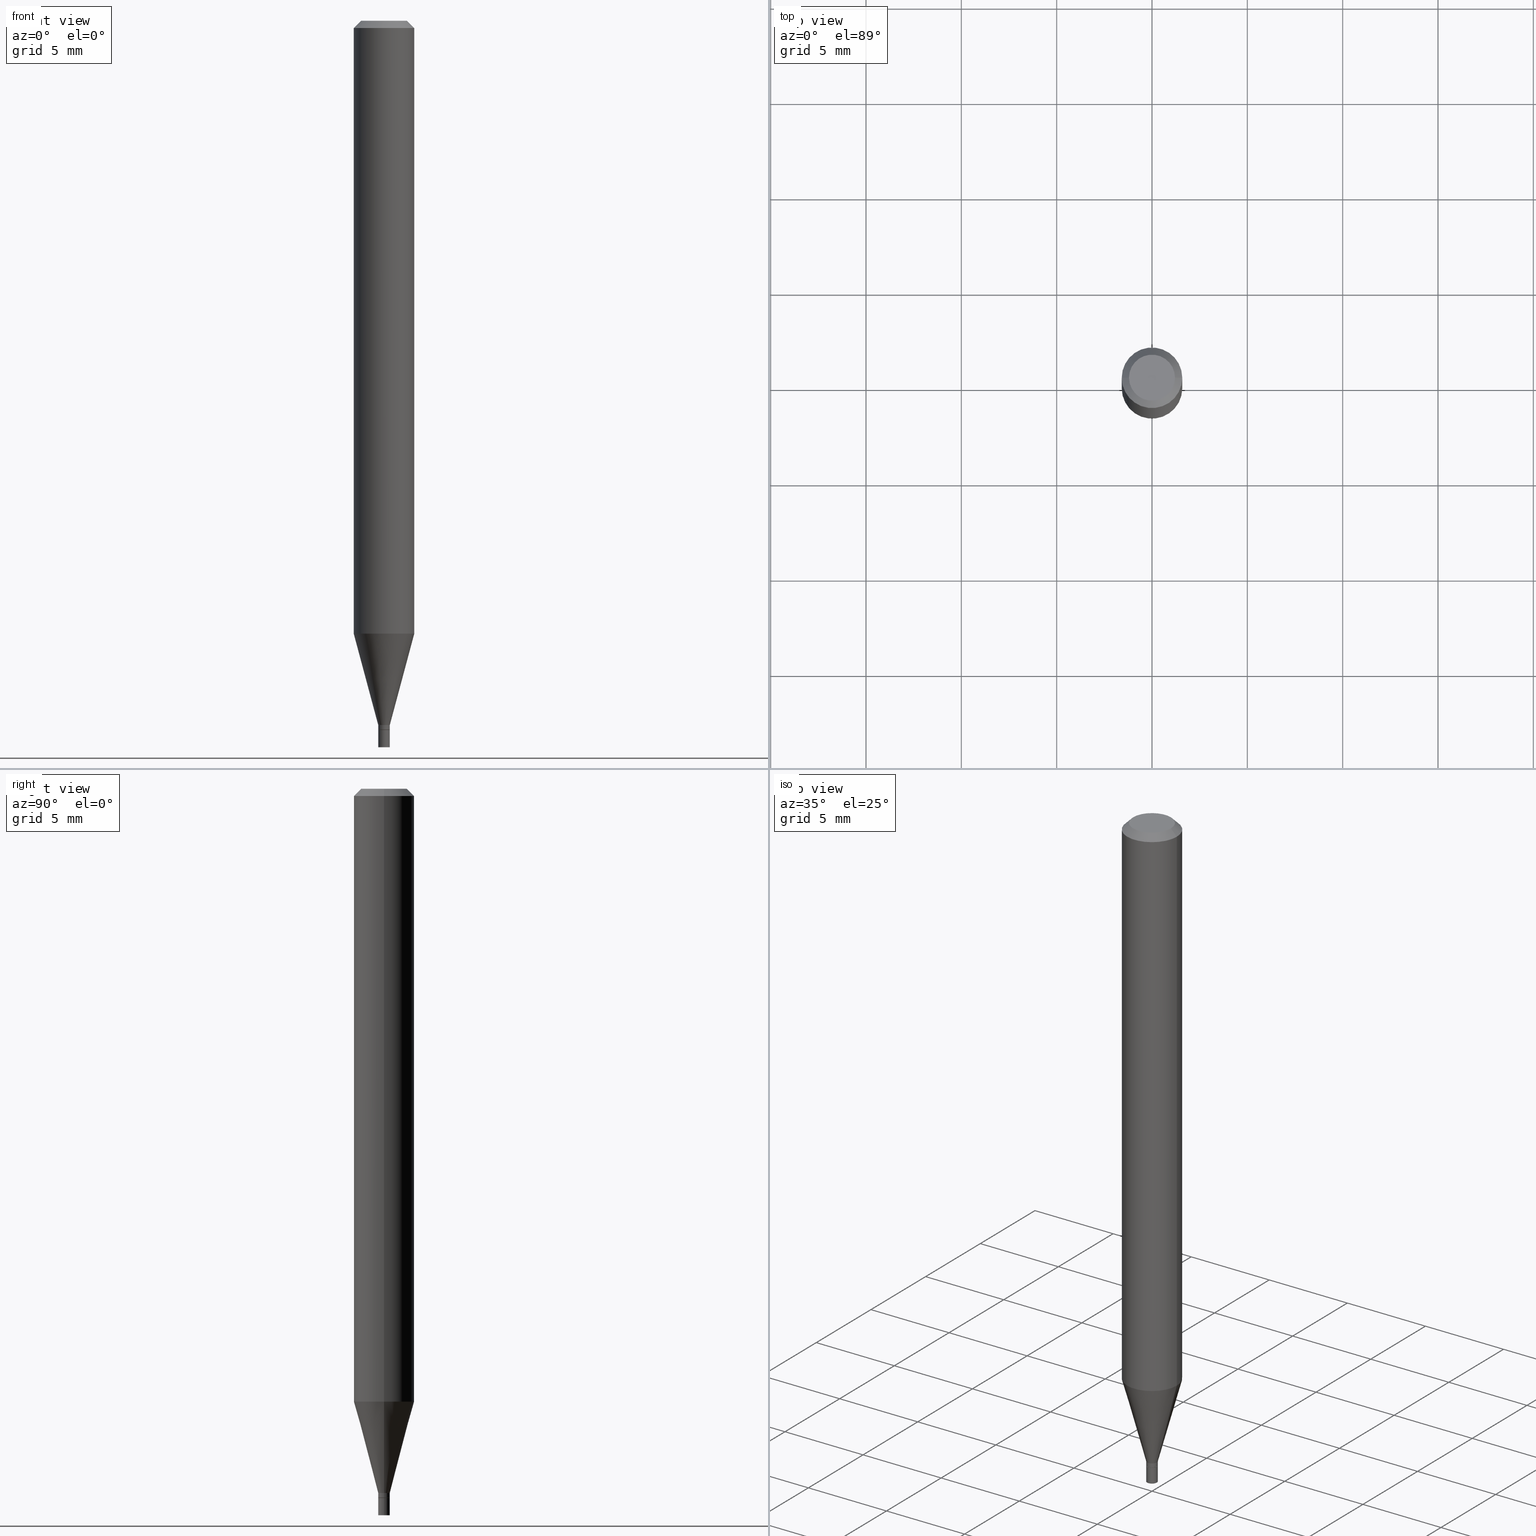
[diagram: canonical four-view strip — front | top / right | iso, engineering-drawing reading convention]
A machine part, canonical four-view strip (front | top / right | iso — engineering-drawing reading convention). The complete STEP part file that produces these views, byte-faithful:
ISO-10303-21;
HEADER;
FILE_DESCRIPTION (( 'STEP AP203' ),
    '1' );
FILE_NAME ('00320.STEP',
    '2024-03-19T20:58:21',
    ( '' ),
    ( '' ),
    'SwSTEP 2.0',
    'SolidWorks 2023',
    '' );
FILE_SCHEMA (( 'CONFIG_CONTROL_DESIGN' ));
ENDSEC;

DATA;
#1 = SHAPE_DEFINITION_REPRESENTATION ( #229, #456 ) ;
#2 = CARTESIAN_POINT ( 'NONE',  ( 3.668203209277705088E-31, -5.237222008264718399E-17, -0.01499999999999999944 ) ) ;
#3 = AXIS2_PLACEMENT_3D ( 'NONE', #223, #375, #192 ) ;
#4 = APPROVAL_ROLE ( '' ) ;
#5 = ORIENTED_EDGE ( 'NONE', *, *, #265, .T. ) ;
#6 = VECTOR ( 'NONE', #18, 39.37007874015748143 ) ;
#7 = ADVANCED_FACE ( 'NONE', ( #45 ), #277, .T. ) ;
#8 = CYLINDRICAL_SURFACE ( 'NONE', #241, 0.01200000000000000025 ) ;
#9 = EDGE_LOOP ( 'NONE', ( #41, #37 ) ) ;
#10 = AXIS2_PLACEMENT_3D ( 'NONE', #406, #196, #121 ) ;
#11 = ORIENTED_EDGE ( 'NONE', *, *, #338, .F. ) ;
#12 = CC_DESIGN_APPROVAL ( #368, ( #359 ) ) ;
#13 = CONICAL_SURFACE ( 'NONE', #74, 0.01149999999999999981, 0.7853981633974718157 ) ;
#14 = DIRECTION ( 'NONE',  ( -2.445468806185136597E-29, 3.491481338843145583E-15, 1.000000000000000000 ) ) ;
#15 = DIRECTION ( 'NONE',  ( 1.000000000000000000, -6.982962677686251722E-15, 0.000000000000000000 ) ) ;
#16 = DIRECTION ( 'NONE',  ( 1.000000000000000000, -6.982962677686251722E-15, 0.000000000000000000 ) ) ;
#17 = CARTESIAN_POINT ( 'NONE',  ( 0.04749999999999999362, -4.035134999187593414E-16, -8.506713692488677736E-16 ) ) ;
#18 = DIRECTION ( 'NONE',  ( -2.445468806185136877E-29, 3.491481338843145188E-15, 1.000000000000000000 ) ) ;
#19 = DIRECTION ( 'NONE',  ( -2.445468806185136597E-29, 3.491481338843145583E-15, 1.000000000000000000 ) ) ;
#20 = EDGE_CURVE ( 'NONE', #27, #203, #386, .T. ) ;
#21 = DIRECTION ( 'NONE',  ( -2.445468806185136597E-29, 3.491481338843145583E-15, 1.000000000000000000 ) ) ;
#22 = FACE_OUTER_BOUND ( 'NONE', #388, .T. ) ;
#23 = CARTESIAN_POINT ( 'NONE',  ( -0.06250000000000000000, 4.440892098500626162E-16, -3.074334431409316114E-30 ) ) ;
#24 = LINE ( 'NONE', #163, #328 ) ;
#25 = CARTESIAN_POINT ( 'NONE',  ( -0.06250000000000000000, 3.840629472727444916E-16, -0.01499999999999999944 ) ) ;
#26 = AXIS2_PLACEMENT_3D ( 'NONE', #296, #260, #119 ) ;
#27 = VERTEX_POINT ( 'NONE', #251 ) ;
#28 =( NAMED_UNIT ( * ) PLANE_ANGLE_UNIT ( ) SI_UNIT ( $, .RADIAN. ) );
#29 = ORIENTED_EDGE ( 'NONE', *, *, #366, .T. ) ;
#30 = AXIS2_PLACEMENT_3D ( 'NONE', #415, #54, #15 ) ;
#31 = SECURITY_CLASSIFICATION_LEVEL ( 'unclassified' ) ;
#32 = PERSON_AND_ORGANIZATION ( #139, #333 ) ;
#33 = EDGE_CURVE ( 'NONE', #254, #427, #292, .T. ) ;
#34 = ORIENTED_EDGE ( 'NONE', *, *, #160, .F. ) ;
#35 = AXIS2_PLACEMENT_3D ( 'NONE', #181, #185, #327 ) ;
#36 = APPROVAL_STATUS ( 'not_yet_approved' ) ;
#37 = ORIENTED_EDGE ( 'NONE', *, *, #268, .T. ) ;
#38 = CONICAL_SURFACE ( 'NONE', #145, 0.01199999999999992219, 0.2617993877991498519 ) ;
#39 = MECHANICAL_CONTEXT ( 'NONE', #401, 'mechanical' ) ;
#40 = ORIENTED_EDGE ( 'NONE', *, *, #402, .F. ) ;
#41 = ORIENTED_EDGE ( 'NONE', *, *, #80, .T. ) ;
#42 = DIRECTION ( 'NONE',  ( 2.445468806185136597E-29, -3.491481338843145583E-15, -1.000000000000000000 ) ) ;
#43 = APPROVAL_PERSON_ORGANIZATION ( #363, #106, #4 ) ;
#44 = DIRECTION ( 'NONE',  ( 1.000000000000000000, -6.982962677686291165E-15, 0.000000000000000000 ) ) ;
#45 = FACE_OUTER_BOUND ( 'NONE', #167, .T. ) ;
#46 = ADVANCED_FACE ( 'NONE', ( #149 ), #8, .T. ) ;
#47 = CLOSED_SHELL ( 'NONE', ( #46, #204, #152, #82 ) ) ;
#48 = FACE_OUTER_BOUND ( 'NONE', #9, .T. ) ;
#49 = VECTOR ( 'NONE', #123, 39.37007874015748143 ) ;
#50 = DIRECTION ( 'NONE',  ( 1.000000000000000000, -6.982962677686265922E-15, 4.876176775795935793E-29 ) ) ;
#51 = DIRECTION ( 'NONE',  ( 1.000000000000000000, -6.982962677686296687E-15, 0.000000000000000000 ) ) ;
#52 = CARTESIAN_POINT ( 'NONE',  ( 0.01199999999999992219, -5.160409418810168864E-15, -1.454000000000000181 ) ) ;
#53 = DIRECTION ( 'NONE',  ( 1.000000000000000000, -6.982962677686296687E-15, 0.000000000000000000 ) ) ;
#54 = DIRECTION ( 'NONE',  ( -2.445468806185136597E-29, 3.491481338843145583E-15, 1.000000000000000000 ) ) ;
#55 = EDGE_CURVE ( 'NONE', #430, #113, #212, .T. ) ;
#56 = CARTESIAN_POINT ( 'NONE',  ( -0.04749999999999999362, 3.578768372314195715E-16, -8.506713692488727040E-16 ) ) ;
#57 = DIRECTION ( 'NONE',  ( -2.445468806185136597E-29, 3.491481338843145583E-15, 1.000000000000000000 ) ) ;
#58 = DIRECTION ( 'NONE',  ( 1.000000000000000000, -6.982962677686266711E-15, 4.876176775795935793E-29 ) ) ;
#59 = CC_DESIGN_APPROVAL ( #106, ( #447 ) ) ;
#60 = DIRECTION ( 'NONE',  ( 1.000000000000000000, -6.982962677686296687E-15, 0.000000000000000000 ) ) ;
#61 = LINE ( 'NONE', #385, #453 ) ;
#62 = DIRECTION ( 'NONE',  ( -0.7071067811865676678, 2.468850131082468081E-15, -0.7071067811865273667 ) ) ;
#63 = VERTEX_POINT ( 'NONE', #434 ) ;
#64 = ORIENTED_EDGE ( 'NONE', *, *, #294, .F. ) ;
#65 = CIRCLE ( 'NONE', #30, 0.01200000000000000025 ) ;
#66 = UNCERTAINTY_MEASURE_WITH_UNIT (LENGTH_MEASURE( 1.000000000000000082E-05 ), #419, 'distance_accuracy_value', 'NONE');
#67 = PERSON_AND_ORGANIZATION ( #139, #333 ) ;
#68 = EDGE_LOOP ( 'NONE', ( #107, #425, #64, #34 ) ) ;
#69 = CC_DESIGN_PERSON_AND_ORGANIZATION_ASSIGNMENT ( #67, #143, ( #331 ) ) ;
#70 = APPROVAL_ROLE ( '' ) ;
#71 = AXIS2_PLACEMENT_3D ( 'NONE', #305, #270, #446 ) ;
#72 = PERSON_AND_ORGANIZATION ( #139, #333 ) ;
#73 = ORIENTED_EDGE ( 'NONE', *, *, #33, .F. ) ;
#74 = AXIS2_PLACEMENT_3D ( 'NONE', #231, #378, #376 ) ;
#75 = ORIENTED_EDGE ( 'NONE', *, *, #234, .F. ) ;
#76 = EDGE_LOOP ( 'NONE', ( #364, #403 ) ) ;
#77 = AXIS2_PLACEMENT_3D ( 'NONE', #258, #187, #153 ) ;
#78 = DIRECTION ( 'NONE',  ( -2.445468806185136597E-29, 3.491481338843145583E-15, 1.000000000000000000 ) ) ;
#79 = LOCAL_TIME ( 16, 58, 21.00000000000000000, #171 ) ;
#80 = EDGE_CURVE ( 'NONE', #318, #101, #84, .T. ) ;
#81 = ORIENTED_EDGE ( 'NONE', *, *, #140, .T. ) ;
#82 = ADVANCED_FACE ( 'NONE', ( #48 ), #439, .F. ) ;
#83 = CARTESIAN_POINT ( 'NONE',  ( 8.379555213227099805E-17, 0.01199999999999488802, -1.463999999999999968 ) ) ;
#84 = CIRCLE ( 'NONE', #348, 0.01200000000000000025 ) ;
#85 = LINE ( 'NONE', #225, #399 ) ;
#86 = CARTESIAN_POINT ( 'NONE',  ( 3.555711644193189020E-29, -5.076613866677933538E-15, -1.454000000000000181 ) ) ;
#87 = AXIS2_PLACEMENT_3D ( 'NONE', #131, #199, #346 ) ;
#88 = DIRECTION ( 'NONE',  ( -1.000000000000000000, 6.982962677686265922E-15, -4.876176775795935793E-29 ) ) ;
#89 = CARTESIAN_POINT ( 'NONE',  ( 3.094817645626298552E-29, -4.418579386290752571E-15, -1.265531434217771922 ) ) ;
#90 = FACE_OUTER_BOUND ( 'NONE', #451, .T. ) ;
#91 = CARTESIAN_POINT ( 'NONE',  ( 0.06250000000000000000, -4.888073874380388472E-16, -0.01499999999999999944 ) ) ;
#92 = MANIFOLD_SOLID_BREP ( 'Body-Move/Copy2[1]', #47 ) ;
#93 = CIRCLE ( 'NONE', #356, 0.01199999999999992219 ) ;
#94 = CYLINDRICAL_SURFACE ( 'NONE', #237, 0.01199999999999992219 ) ;
#95 = CARTESIAN_POINT ( 'NONE',  ( 2.080290297812910479E-44, -2.970103211220577886E-30, -8.506713692488703374E-16 ) ) ;
#96 = DIRECTION ( 'NONE',  ( 1.000000000000000000, -6.982962677686266711E-15, 4.876176775795936353E-29 ) ) ;
#97 = CIRCLE ( 'NONE', #87, 0.01199999999999992219 ) ;
#98 = DIRECTION ( 'NONE',  ( 1.000000000000000000, -6.982962677686262766E-15, 0.000000000000000000 ) ) ;
#99 = CC_DESIGN_DATE_AND_TIME_ASSIGNMENT ( #314, #392, ( #215 ) ) ;
#100 = CYLINDRICAL_SURFACE ( 'NONE', #289, 0.06250000000000000000 ) ;
#101 = VERTEX_POINT ( 'NONE', #404 ) ;
#102 = DIRECTION ( 'NONE',  ( 0.7071067811865676678, -7.319954787623323887E-15, -0.7071067811865273667 ) ) ;
#103 = ORIENTED_EDGE ( 'NONE', *, *, #420, .F. ) ;
#104 = EDGE_CURVE ( 'NONE', #427, #254, #428, .T. ) ;
#105 = VERTEX_POINT ( 'NONE', #52 ) ;
#106 = APPROVAL ( #36, 'UNSPECIFIED' ) ;
#107 = ORIENTED_EDGE ( 'NONE', *, *, #182, .T. ) ;
#108 = PERSON_AND_ORGANIZATION_ROLE ( 'creator' ) ;
#109 = EDGE_CURVE ( 'NONE', #203, #27, #180, .T. ) ;
#110 = ORIENTED_EDGE ( 'NONE', *, *, #290, .T. ) ;
#111 = CIRCLE ( 'NONE', #373, 0.04749999999999999362 ) ;
#112 = ORIENTED_EDGE ( 'NONE', *, *, #290, .F. ) ;
#113 = VERTEX_POINT ( 'NONE', #298 ) ;
#114 = ORIENTED_EDGE ( 'NONE', *, *, #301, .F. ) ;
#115 = LOCAL_TIME ( 16, 58, 21.00000000000000000, #242 ) ;
#116 = ORIENTED_EDGE ( 'NONE', *, *, #20, .F. ) ;
#117 = DIRECTION ( 'NONE',  ( 2.438088387897960049E-29, -3.491481338843145188E-15, -1.000000000000000000 ) ) ;
#118 = DIRECTION ( 'NONE',  ( 2.445468806185136597E-29, -3.491481338843145583E-15, -1.000000000000000000 ) ) ;
#119 = DIRECTION ( 'NONE',  ( 1.000000000000000000, -6.982962677686267499E-15, 4.852736867747366768E-29 ) ) ;
#120 = ADVANCED_FACE ( 'NONE', ( #441 ), #380, .T. ) ;
#121 = DIRECTION ( 'NONE',  ( 1.000000000000000000, -6.982962677686265922E-15, 4.876176775795935793E-29 ) ) ;
#122 = VECTOR ( 'NONE', #455, 39.37007874015748143 ) ;
#123 = DIRECTION ( 'NONE',  ( -2.445468806185136877E-29, 3.491481338843145188E-15, 1.000000000000000000 ) ) ;
#124 = CARTESIAN_POINT ( 'NONE',  ( 3.555711644193189020E-29, -5.076613866677933538E-15, -1.454000000000000181 ) ) ;
#125 = LINE ( 'NONE', #197, #431 ) ;
#126 = FACE_OUTER_BOUND ( 'NONE', #176, .T. ) ;
#127 = EDGE_CURVE ( 'NONE', #113, #465, #85, .T. ) ;
#128 = CARTESIAN_POINT ( 'NONE',  ( 3.555711644193189020E-29, -5.076613866677933538E-15, -1.454000000000000181 ) ) ;
#129 = CARTESIAN_POINT ( 'NONE',  ( 3.578943597851947764E-29, -5.109782939396944472E-15, -1.463500000000000023 ) ) ;
#130 = ORIENTED_EDGE ( 'NONE', *, *, #182, .F. ) ;
#131 = CARTESIAN_POINT ( 'NONE',  ( 3.578943597851947764E-29, -5.109782939396944472E-15, -1.463500000000000023 ) ) ;
#132 = ORIENTED_EDGE ( 'NONE', *, *, #80, .F. ) ;
#133 = APPROVAL_ROLE ( '' ) ;
#134 = ADVANCED_FACE ( 'NONE', ( #339 ), #256, .F. ) ;
#135 = ORIENTED_EDGE ( 'NONE', *, *, #20, .T. ) ;
#136 =( NAMED_UNIT ( * ) SI_UNIT ( $, .STERADIAN. ) SOLID_ANGLE_UNIT ( ) );
#137 = COORDINATED_UNIVERSAL_TIME_OFFSET ( 5, 0, .BEHIND. ) ;
#138 = VERTEX_POINT ( 'NONE', #371 ) ;
#139 = PERSON ( 'UNSPECIFIED', 'UNSPECIFIED', 'UNSPECIFIED', ('UNSPECIFIED'), ('UNSPECIFIED'), ('UNSPECIFIED') ) ;
#140 = EDGE_CURVE ( 'NONE', #330, #179, #300, .T. ) ;
#141 = DIRECTION ( 'NONE',  ( 1.000000000000000000, -6.982962677686251722E-15, 0.000000000000000000 ) ) ;
#142 = CLOSED_SHELL ( 'NONE', ( #454, #120, #7, #324, #317, #287, #170, #257, #220, #134, #308, #462 ) ) ;
#143 = PERSON_AND_ORGANIZATION_ROLE ( 'design_owner' ) ;
#144 = EDGE_LOOP ( 'NONE', ( #40, #396, #174, #422 ) ) ;
#145 = AXIS2_PLACEMENT_3D ( 'NONE', #450, #166, #53 ) ;
#146 = CARTESIAN_POINT ( 'NONE',  ( 0.000000000000000000, 0.000000000000000000, 0.000000000000000000 ) ) ;
#147 = ORIENTED_EDGE ( 'NONE', *, *, #189, .T. ) ;
#148 = CIRCLE ( 'NONE', #414, 0.01149999999999999981 ) ;
#149 = FACE_OUTER_BOUND ( 'NONE', #398, .T. ) ;
#150 = DIRECTION ( 'NONE',  ( 1.000000000000000000, -6.982962677686291165E-15, 0.000000000000000000 ) ) ;
#151 = DIRECTION ( 'NONE',  ( -2.445468806185136597E-29, 3.491481338843145583E-15, 1.000000000000000000 ) ) ;
#152 = ADVANCED_FACE ( 'NONE', ( #336 ), #407, .T. ) ;
#153 = DIRECTION ( 'NONE',  ( 1.000000000000000000, -6.982962677686251722E-15, 0.000000000000000000 ) ) ;
#154 = CARTESIAN_POINT ( 'NONE',  ( 3.580166332255040005E-29, -5.111528680066365187E-15, -1.463999999999999968 ) ) ;
#155 = CC_DESIGN_PERSON_AND_ORGANIZATION_ASSIGNMENT ( #320, #464, ( #215 ) ) ;
#156 = CARTESIAN_POINT ( 'NONE',  ( -0.06250000000000000000, -1.791386593336637406E-15, -0.01499999999999999944 ) ) ;
#157 = DIRECTION ( 'NONE',  ( 1.000000000000000000, -6.982962677686267499E-15, 4.852736867747366768E-29 ) ) ;
#158 = CC_DESIGN_SECURITY_CLASSIFICATION ( #215, ( #359 ) ) ;
#159 = LINE ( 'NONE', #417, #6 ) ;
#160 = EDGE_CURVE ( 'NONE', #393, #105, #297, .T. ) ;
#161 = PLANE ( 'NONE',  #71 ) ;
#162 = DIRECTION ( 'NONE',  ( -2.445468806185136597E-29, 3.491481338843145583E-15, 1.000000000000000000 ) ) ;
#163 = CARTESIAN_POINT ( 'NONE',  ( 0.06250000000000000000, -4.811533449433679005E-16, -0.01499999999999999944 ) ) ;
#164 = EDGE_CURVE ( 'NONE', #430, #393, #264, .T. ) ;
#165 = AXIS2_PLACEMENT_3D ( 'NONE', #83, #117, #88 ) ;
#166 = DIRECTION ( 'NONE',  ( -2.445468806185136597E-29, 3.491481338843145583E-15, 1.000000000000000000 ) ) ;
#167 = EDGE_LOOP ( 'NONE', ( #433, #250, #369, #288 ) ) ;
#168 = LINE ( 'NONE', #309, #49 ) ;
#169 = ORIENTED_EDGE ( 'NONE', *, *, #353, .F. ) ;
#170 = ADVANCED_FACE ( 'NONE', ( #416 ), #449, .T. ) ;
#171 = COORDINATED_UNIVERSAL_TIME_OFFSET ( 5, 0, .BEHIND. ) ;
#172 = AXIS2_PLACEMENT_3D ( 'NONE', #2, #42, #329 ) ;
#173 = DATE_TIME_ROLE ( 'creation_date' ) ;
#174 = ORIENTED_EDGE ( 'NONE', *, *, #420, .T. ) ;
#175 = CC_DESIGN_APPROVAL ( #389, ( #215 ) ) ;
#176 = EDGE_LOOP ( 'NONE', ( #114, #461, #29, #253 ) ) ;
#177 = CC_DESIGN_PERSON_AND_ORGANIZATION_ASSIGNMENT ( #178, #208, ( #447 ) ) ;
#178 = PERSON_AND_ORGANIZATION ( #139, #333 ) ;
#179 = VERTEX_POINT ( 'NONE', #17 ) ;
#180 = CIRCLE ( 'NONE', #77, 0.01200000000000000025 ) ;
#181 = CARTESIAN_POINT ( 'NONE',  ( 3.668203209277705088E-31, -5.237222008264718399E-17, -0.01499999999999999944 ) ) ;
#182 = EDGE_CURVE ( 'NONE', #393, #465, #93, .T. ) ;
#183 = DIRECTION ( 'NONE',  ( -2.445468806185136597E-29, 3.491481338843145583E-15, 1.000000000000000000 ) ) ;
#184 = CC_DESIGN_PERSON_AND_ORGANIZATION_ASSIGNMENT ( #205, #108, ( #359 ) ) ;
#185 = DIRECTION ( 'NONE',  ( -2.445468806185136597E-29, 3.491481338843145583E-15, 1.000000000000000000 ) ) ;
#186 = CIRCLE ( 'NONE', #248, 0.06250000000000000000 ) ;
#187 = DIRECTION ( 'NONE',  ( -2.445468806185136597E-29, 3.491481338843145583E-15, 1.000000000000000000 ) ) ;
#188 = DIRECTION ( 'NONE',  ( 1.000000000000000000, -6.982962677686291165E-15, 0.000000000000000000 ) ) ;
#189 = EDGE_CURVE ( 'NONE', #113, #430, #148, .T. ) ;
#190 = APPROVAL_PERSON_ORGANIZATION ( #72, #389, #133 ) ;
#191 = CIRCLE ( 'NONE', #350, 0.01199999999999992219 ) ;
#192 = DIRECTION ( 'NONE',  ( 1.000000000000000000, -6.982962677686266711E-15, 0.000000000000000000 ) ) ;
#193 = CARTESIAN_POINT ( 'NONE',  ( 0.01199999999999992219, -8.379555213223466114E-17, 5.851412130955085677E-31 ) ) ;
#194 = DIRECTION ( 'NONE',  ( -0.7071067811865642261, 7.493145998870414114E-15, 0.7071067811865309194 ) ) ;
#195 = DIRECTION ( 'NONE',  ( -2.445468806185136597E-29, 3.491481338843145583E-15, 1.000000000000000000 ) ) ;
#196 = DIRECTION ( 'NONE',  ( -2.438088387897960049E-29, 3.491481338843145188E-15, 1.000000000000000000 ) ) ;
#197 = CARTESIAN_POINT ( 'NONE',  ( -0.01199999999999992219, -4.991348738386722228E-15, -1.454000000000000181 ) ) ;
#198 = CARTESIAN_POINT ( 'NONE',  ( 0.000000000000000000, 0.000000000000000000, 0.000000000000000000 ) ) ;
#199 = DIRECTION ( 'NONE',  ( -2.445468806185136597E-29, 3.491481338843145583E-15, 1.000000000000000000 ) ) ;
#200 = DIRECTION ( 'NONE',  ( 1.000000000000000000, -6.982962677686296687E-15, 0.000000000000000000 ) ) ;
#201 =( LENGTH_UNIT ( ) NAMED_UNIT ( * ) SI_UNIT ( $, .METRE. ) );
#202 = DIRECTION ( 'NONE',  ( 1.000000000000000000, -6.982962677686266711E-15, 4.876176775795936353E-29 ) ) ;
#203 = VERTEX_POINT ( 'NONE', #442 ) ;
#204 = ADVANCED_FACE ( 'NONE', ( #440 ), #345, .F. ) ;
#205 = PERSON_AND_ORGANIZATION ( #139, #333 ) ;
#206 = VECTOR ( 'NONE', #62, 39.37007874015748143 ) ;
#207 = ORIENTED_EDGE ( 'NONE', *, *, #265, .F. ) ;
#208 = PERSON_AND_ORGANIZATION_ROLE ( 'creator' ) ;
#209 = ORIENTED_EDGE ( 'NONE', *, *, #164, .F. ) ;
#210 = AXIS2_PLACEMENT_3D ( 'NONE', #347, #261, #409 ) ;
#211 = PERSON_AND_ORGANIZATION_ROLE ( 'design_supplier' ) ;
#212 = CIRCLE ( 'NONE', #370, 0.01149999999999999981 ) ;
#213 = EDGE_CURVE ( 'NONE', #275, #138, #269, .T. ) ;
#214 = COORDINATED_UNIVERSAL_TIME_OFFSET ( 5, 0, .BEHIND. ) ;
#215 = SECURITY_CLASSIFICATION ( '', '', #31 ) ;
#216 = ORIENTED_EDGE ( 'NONE', *, *, #109, .T. ) ;
#217 = CIRCLE ( 'NONE', #311, 0.01199999999999992219 ) ;
#218 = EDGE_LOOP ( 'NONE', ( #418, #116 ) ) ;
#219 = ORIENTED_EDGE ( 'NONE', *, *, #55, .T. ) ;
#220 = ADVANCED_FACE ( 'NONE', ( #22 ), #161, .F. ) ;
#221 = DIRECTION ( 'NONE',  ( -2.445468806185136597E-29, 3.491481338843145583E-15, 1.000000000000000000 ) ) ;
#222 = ORIENTED_EDGE ( 'NONE', *, *, #412, .F. ) ;
#223 = CARTESIAN_POINT ( 'NONE',  ( 3.668203209277705088E-31, -5.237222008264718399E-17, -0.01499999999999999944 ) ) ;
#224 = AXIS2_PLACEMENT_3D ( 'NONE', #332, #14, #150 ) ;
#225 = CARTESIAN_POINT ( 'NONE',  ( -0.01149999999999999981, -5.029816265453953987E-15, -1.463999999999999968 ) ) ;
#226 = DIRECTION ( 'NONE',  ( -2.445468806185136597E-29, 3.491481338843145583E-15, 1.000000000000000000 ) ) ;
#227 = AXIS2_PLACEMENT_3D ( 'NONE', #410, #162, #202 ) ;
#228 = CARTESIAN_POINT ( 'NONE',  ( 0.000000000000000000, 0.000000000000000000, 0.000000000000000000 ) ) ;
#229 = PRODUCT_DEFINITION_SHAPE ( 'NONE', 'NONE',  #447 ) ;
#230 = CARTESIAN_POINT ( 'NONE',  ( 3.668203209277705088E-31, -5.237222008264718399E-17, -0.01499999999999999944 ) ) ;
#231 = CARTESIAN_POINT ( 'NONE',  ( 3.580166332255040005E-29, -5.111528680066365187E-15, -1.463999999999999968 ) ) ;
#232 = DIRECTION ( 'NONE',  ( -1.000000000000000000, 6.982962677686266711E-15, 0.000000000000000000 ) ) ;
#233 = VECTOR ( 'NONE', #379, 39.37007874015748143 ) ;
#234 = EDGE_CURVE ( 'NONE', #138, #275, #186, .T. ) ;
#235 = FACE_OUTER_BOUND ( 'NONE', #313, .T. ) ;
#236 = DIRECTION ( 'NONE',  ( -2.445468806185136597E-29, 3.491481338843145583E-15, 1.000000000000000000 ) ) ;
#237 = AXIS2_PLACEMENT_3D ( 'NONE', #443, #276, #96 ) ;
#238 = FACE_OUTER_BOUND ( 'NONE', #68, .T. ) ;
#239 = DIRECTION ( 'NONE',  ( 1.000000000000000000, -6.982962677686266711E-15, 4.876176775795935793E-29 ) ) ;
#240 = ORIENTED_EDGE ( 'NONE', *, *, #104, .F. ) ;
#241 = AXIS2_PLACEMENT_3D ( 'NONE', #146, #78, #438 ) ;
#242 = COORDINATED_UNIVERSAL_TIME_OFFSET ( 5, 0, .BEHIND. ) ;
#243 = EDGE_LOOP ( 'NONE', ( #310, #147, #247, #11 ) ) ;
#244 = LOCAL_TIME ( 16, 58, 21.00000000000000000, #137 ) ;
#245 = CALENDAR_DATE ( 2024, 19, 3 ) ;
#246 = ORIENTED_EDGE ( 'NONE', *, *, #338, .T. ) ;
#247 = ORIENTED_EDGE ( 'NONE', *, *, #164, .T. ) ;
#248 = AXIS2_PLACEMENT_3D ( 'NONE', #89, #19, #98 ) ;
#249 = DATE_AND_TIME ( #325, #463 ) ;
#250 = ORIENTED_EDGE ( 'NONE', *, *, #301, .T. ) ;
#251 = CARTESIAN_POINT ( 'NONE',  ( -0.01200000000000000025, -5.089110215874330372E-15, -1.500000000000000222 ) ) ;
#252 = AXIS2_PLACEMENT_3D ( 'NONE', #86, #226, #200 ) ;
#253 = ORIENTED_EDGE ( 'NONE', *, *, #104, .T. ) ;
#254 = VERTEX_POINT ( 'NONE', #91 ) ;
#255 = EDGE_LOOP ( 'NONE', ( #169, #358, #362, #240 ) ) ;
#256 = PLANE ( 'NONE',  #342 ) ;
#257 = ADVANCED_FACE ( 'NONE', ( #126 ), #408, .T. ) ;
#258 = CARTESIAN_POINT ( 'NONE',  ( 3.668203209277704895E-29, -5.237222008264718177E-15, -1.500000000000000222 ) ) ;
#259 = CARTESIAN_POINT ( 'NONE',  ( -0.06250000000000000000, -3.974490176440689955E-15, -1.265531434217771922 ) ) ;
#260 = DIRECTION ( 'NONE',  ( -2.445468806185136597E-29, 3.491481338843145583E-15, 1.000000000000000000 ) ) ;
#261 = DIRECTION ( 'NONE',  ( -2.445468806185136597E-29, 3.491481338843145583E-15, 1.000000000000000000 ) ) ;
#262 = AXIS2_PLACEMENT_3D ( 'NONE', #230, #118, #232 ) ;
#263 = DIRECTION ( 'NONE',  ( -0.2588190451025211281, 5.211531920934547886E-15, 0.9659258262890679791 ) ) ;
#264 = LINE ( 'NONE', #337, #459 ) ;
#265 = EDGE_CURVE ( 'NONE', #203, #318, #377, .T. ) ;
#266 = DIRECTION ( 'NONE',  ( 0.2588190451025211281, 1.565188264969622954E-15, 0.9659258262890679791 ) ) ;
#267 = CARTESIAN_POINT ( 'NONE',  ( 0.01200000000000000025, -8.379555213223520348E-17, 5.851412130955122461E-31 ) ) ;
#268 = EDGE_CURVE ( 'NONE', #101, #318, #65, .T. ) ;
#269 = CIRCLE ( 'NONE', #210, 0.06250000000000000000 ) ;
#270 = DIRECTION ( 'NONE',  ( 2.438088387897960049E-29, -3.491481338843145188E-15, -1.000000000000000000 ) ) ;
#271 = LOCAL_TIME ( 16, 58, 21.00000000000000000, #214 ) ;
#272 = CONICAL_SURFACE ( 'NONE', #252, 0.01199999999999992219, 0.2617993877991498519 ) ;
#273 = EDGE_CURVE ( 'NONE', #179, #330, #111, .T. ) ;
#274 = LENGTH_MEASURE_WITH_UNIT ( LENGTH_MEASURE( 0.02539999999999999897 ), #201 );
#275 = VERTEX_POINT ( 'NONE', #259 ) ;
#276 = DIRECTION ( 'NONE',  ( -2.445468806185136597E-29, 3.491481338843145583E-15, 1.000000000000000000 ) ) ;
#277 = CONICAL_SURFACE ( 'NONE', #172, 0.06250000000000000000, 0.7853981633974768117 ) ;
#278 = DATE_AND_TIME ( #390, #115 ) ;
#279 = DIRECTION ( 'NONE',  ( 1.000000000000000000, 0.000000000000000000, 0.000000000000000000 ) ) ;
#280 = EDGE_LOOP ( 'NONE', ( #219, #321, #130, #209 ) ) ;
#281 = CC_DESIGN_PERSON_AND_ORGANIZATION_ASSIGNMENT ( #32, #211, ( #359 ) ) ;
#282 = DIMENSIONAL_EXPONENTS ( 1.000000000000000000, 0.000000000000000000, 0.000000000000000000, 0.000000000000000000, 0.000000000000000000, 0.000000000000000000, 0.000000000000000000 ) ;
#283 = CALENDAR_DATE ( 2024, 19, 3 ) ;
#284 = AXIS2_PLACEMENT_3D ( 'NONE', #228, #374, #307 ) ;
#285 = ORIENTED_EDGE ( 'NONE', *, *, #437, .F. ) ;
#286 = APPROVAL_DATE_TIME ( #357, #106 ) ;
#287 = ADVANCED_FACE ( 'NONE', ( #341 ), #272, .T. ) ;
#288 = ORIENTED_EDGE ( 'NONE', *, *, #366, .F. ) ;
#289 = AXIS2_PLACEMENT_3D ( 'NONE', #381, #21, #58 ) ;
#290 = EDGE_CURVE ( 'NONE', #27, #101, #382, .T. ) ;
#291 = CARTESIAN_POINT ( 'NONE',  ( 3.580166332255040005E-29, -5.111528680066365187E-15, -1.463999999999999968 ) ) ;
#292 = CIRCLE ( 'NONE', #35, 0.06250000000000000000 ) ;
#293 = ORIENTED_EDGE ( 'NONE', *, *, #268, .F. ) ;
#294 = EDGE_CURVE ( 'NONE', #105, #63, #217, .T. ) ;
#295 = ORIENTED_EDGE ( 'NONE', *, *, #294, .T. ) ;
#296 = CARTESIAN_POINT ( 'NONE',  ( 2.080290297812910479E-44, -2.970103211220577886E-30, -8.506713692488703374E-16 ) ) ;
#297 = LINE ( 'NONE', #193, #233 ) ;
#298 = CARTESIAN_POINT ( 'NONE',  ( -0.01149999999999999981, -5.027167038279843575E-15, -1.463999999999999968 ) ) ;
#299 = DIRECTION ( 'NONE',  ( -2.445468806185136597E-29, 3.491481338843145583E-15, 1.000000000000000000 ) ) ;
#300 = CIRCLE ( 'NONE', #26, 0.04749999999999999362 ) ;
#301 = EDGE_CURVE ( 'NONE', #179, #254, #24, .T. ) ;
#302 = CARTESIAN_POINT ( 'NONE',  ( 0.01149999999999999981, -5.191832750859757506E-15, -1.463999999999999968 ) ) ;
#303 = CARTESIAN_POINT ( 'NONE',  ( -0.01200000000000000025, 8.526512829121202408E-17, -5.902722108305887001E-31 ) ) ;
#304 = DIRECTION ( 'NONE',  ( 1.000000000000000000, -6.982962677686296687E-15, 0.000000000000000000 ) ) ;
#305 = CARTESIAN_POINT ( 'NONE',  ( 3.316907271900976096E-16, 0.04749999999999999362, -5.911810482194846144E-16 ) ) ;
#306 = FACE_OUTER_BOUND ( 'NONE', #243, .T. ) ;
#307 = DIRECTION ( 'NONE',  ( 1.000000000000000000, -6.982962677686266711E-15, 4.876176775795935232E-29 ) ) ;
#308 = ADVANCED_FACE ( 'NONE', ( #306 ), #13, .T. ) ;
#309 = CARTESIAN_POINT ( 'NONE',  ( 0.06250000000000000000, -4.364351673553916694E-16, 3.047610484872459871E-30 ) ) ;
#310 = ORIENTED_EDGE ( 'NONE', *, *, #127, .F. ) ;
#311 = AXIS2_PLACEMENT_3D ( 'NONE', #124, #236, #60 ) ;
#312 = CARTESIAN_POINT ( 'NONE',  ( 0.01200000000000000025, -5.195324232198600513E-15, -1.463999999999999968 ) ) ;
#313 = EDGE_LOOP ( 'NONE', ( #295, #436, #75, #103 ) ) ;
#314 = DATE_AND_TIME ( #283, #79 ) ;
#315 = AXIS2_PLACEMENT_3D ( 'NONE', #198, #384, #239 ) ;
#316 = APPLICATION_PROTOCOL_DEFINITION ( 'international standard', 'config_control_design', 1994, #401 ) ;
#317 = ADVANCED_FACE ( 'NONE', ( #235 ), #38, .T. ) ;
#318 = VERTEX_POINT ( 'NONE', #312 ) ;
#319 =( GEOMETRIC_REPRESENTATION_CONTEXT ( 3 ) GLOBAL_UNCERTAINTY_ASSIGNED_CONTEXT ( ( #66 ) ) GLOBAL_UNIT_ASSIGNED_CONTEXT ( ( #419, #28, #136 ) ) REPRESENTATION_CONTEXT ( 'NONE', 'WORKASPACE' ) );
#320 = PERSON_AND_ORGANIZATION ( #139, #333 ) ;
#321 = ORIENTED_EDGE ( 'NONE', *, *, #127, .T. ) ;
#322 = APPROVAL_DATE_TIME ( #361, #389 ) ;
#323 = ORIENTED_EDGE ( 'NONE', *, *, #273, .T. ) ;
#324 = ADVANCED_FACE ( 'NONE', ( #383 ), #100, .T. ) ;
#325 = CALENDAR_DATE ( 2024, 19, 3 ) ;
#326 = EDGE_LOOP ( 'NONE', ( #112, #135, #5, #293 ) ) ;
#327 = DIRECTION ( 'NONE',  ( 1.000000000000000000, -6.982962677686266711E-15, 0.000000000000000000 ) ) ;
#328 = VECTOR ( 'NONE', #102, 39.37007874015748143 ) ;
#329 = DIRECTION ( 'NONE',  ( -1.000000000000000000, 6.982962677686266711E-15, 0.000000000000000000 ) ) ;
#330 = VERTEX_POINT ( 'NONE', #56 ) ;
#331 = PRODUCT ( '00320', '00320', '', ( #39 ) ) ;
#332 = CARTESIAN_POINT ( 'NONE',  ( 3.580166332255040005E-29, -5.111528680066365187E-15, -1.463999999999999968 ) ) ;
#333 = ORGANIZATION ( 'UNSPECIFIED', 'UNSPECIFIED', '' ) ;
#334 = VECTOR ( 'NONE', #335, 39.37007874015748143 ) ;
#335 = DIRECTION ( 'NONE',  ( -2.445468806185136877E-29, 3.491481338843145188E-15, 1.000000000000000000 ) ) ;
#336 = FACE_OUTER_BOUND ( 'NONE', #326, .T. ) ;
#337 = CARTESIAN_POINT ( 'NONE',  ( 0.01149999999999999981, -5.191832750859757506E-15, -1.463999999999999968 ) ) ;
#338 = EDGE_CURVE ( 'NONE', #465, #393, #97, .T. ) ;
#339 = FACE_OUTER_BOUND ( 'NONE', #76, .T. ) ;
#340 = LINE ( 'NONE', #23, #122 ) ;
#341 = FACE_OUTER_BOUND ( 'NONE', #144, .T. ) ;
#342 = AXIS2_PLACEMENT_3D ( 'NONE', #405, #372, #50 ) ;
#343 = PRODUCT_RELATED_PRODUCT_CATEGORY ( 'detail', '', ( #331 ) ) ;
#344 = CARTESIAN_POINT ( 'NONE',  ( 0.01199999999999992219, -5.193578491529179010E-15, -1.463500000000000023 ) ) ;
#345 = PLANE ( 'NONE',  #10 ) ;
#346 = DIRECTION ( 'NONE',  ( 1.000000000000000000, -6.982962677686296687E-15, 0.000000000000000000 ) ) ;
#347 = CARTESIAN_POINT ( 'NONE',  ( 3.094817645626298552E-29, -4.418579386290752571E-15, -1.265531434217771922 ) ) ;
#348 = AXIS2_PLACEMENT_3D ( 'NONE', #367, #183, #16 ) ;
#349 = ORIENTED_EDGE ( 'NONE', *, *, #234, .T. ) ;
#350 = AXIS2_PLACEMENT_3D ( 'NONE', #128, #195, #304 ) ;
#351 = DIRECTION ( 'NONE',  ( 0.000000000000000000, 0.000000000000000000, 1.000000000000000000 ) ) ;
#352 = DESIGN_CONTEXT ( 'detailed design', #424, 'design' ) ;
#353 = EDGE_CURVE ( 'NONE', #275, #427, #340, .T. ) ;
#354 = CALENDAR_DATE ( 2024, 19, 3 ) ;
#355 = ORIENTED_EDGE ( 'NONE', *, *, #160, .T. ) ;
#356 = AXIS2_PLACEMENT_3D ( 'NONE', #129, #57, #51 ) ;
#357 = DATE_AND_TIME ( #354, #244 ) ;
#358 = ORIENTED_EDGE ( 'NONE', *, *, #213, .T. ) ;
#359 = PRODUCT_DEFINITION_FORMATION_WITH_SPECIFIED_SOURCE ( 'ANY', '', #331, .NOT_KNOWN. ) ;
#360 = VECTOR ( 'NONE', #444, 39.37007874015748143 ) ;
#361 = DATE_AND_TIME ( #245, #271 ) ;
#362 = ORIENTED_EDGE ( 'NONE', *, *, #437, .T. ) ;
#363 = PERSON_AND_ORGANIZATION ( #139, #333 ) ;
#364 = ORIENTED_EDGE ( 'NONE', *, *, #55, .F. ) ;
#365 = DIRECTION ( 'NONE',  ( -2.445468806185136597E-29, 3.491481338843145583E-15, 1.000000000000000000 ) ) ;
#366 = EDGE_CURVE ( 'NONE', #330, #427, #445, .T. ) ;
#367 = CARTESIAN_POINT ( 'NONE',  ( 3.580166332255040005E-29, -5.111528680066365187E-15, -1.463999999999999968 ) ) ;
#368 = APPROVAL ( #395, 'UNSPECIFIED' ) ;
#369 = ORIENTED_EDGE ( 'NONE', *, *, #33, .T. ) ;
#370 = AXIS2_PLACEMENT_3D ( 'NONE', #291, #221, #44 ) ;
#371 = CARTESIAN_POINT ( 'NONE',  ( 0.06250000000000000000, -4.855014553646144241E-15, -1.265531434217771922 ) ) ;
#372 = DIRECTION ( 'NONE',  ( -2.438088387897960049E-29, 3.491481338843145188E-15, 1.000000000000000000 ) ) ;
#373 = AXIS2_PLACEMENT_3D ( 'NONE', #95, #151, #157 ) ;
#374 = DIRECTION ( 'NONE',  ( -2.445468806185136597E-29, 3.491481338843145583E-15, 1.000000000000000000 ) ) ;
#375 = DIRECTION ( 'NONE',  ( -2.445468806185136597E-29, 3.491481338843145583E-15, 1.000000000000000000 ) ) ;
#376 = DIRECTION ( 'NONE',  ( 1.000000000000000000, -6.982962677686291165E-15, 0.000000000000000000 ) ) ;
#377 = LINE ( 'NONE', #267, #334 ) ;
#378 = DIRECTION ( 'NONE',  ( -2.445468806185136597E-29, 3.491481338843145583E-15, 1.000000000000000000 ) ) ;
#379 = DIRECTION ( 'NONE',  ( -2.445468806185136877E-29, 3.491481338843145188E-15, 1.000000000000000000 ) ) ;
#380 = CONICAL_SURFACE ( 'NONE', #224, 0.01149999999999999981, 0.7853981633974718157 ) ;
#381 = CARTESIAN_POINT ( 'NONE',  ( 0.000000000000000000, 0.000000000000000000, 0.000000000000000000 ) ) ;
#382 = LINE ( 'NONE', #303, #360 ) ;
#383 = FACE_OUTER_BOUND ( 'NONE', #391, .T. ) ;
#384 = DIRECTION ( 'NONE',  ( -2.445468806185136597E-29, 3.491481338843145583E-15, 1.000000000000000000 ) ) ;
#385 = CARTESIAN_POINT ( 'NONE',  ( 0.01199999999999992219, -5.160409418810168864E-15, -1.454000000000000181 ) ) ;
#386 = CIRCLE ( 'NONE', #435, 0.01200000000000000025 ) ;
#387 = ORIENTED_EDGE ( 'NONE', *, *, #423, .F. ) ;
#388 = EDGE_LOOP ( 'NONE', ( #81, #323 ) ) ;
#389 = APPROVAL ( #457, 'UNSPECIFIED' ) ;
#390 = CALENDAR_DATE ( 2024, 19, 3 ) ;
#391 = EDGE_LOOP ( 'NONE', ( #349, #458, #73, #285 ) ) ;
#392 = DATE_TIME_ROLE ( 'classification_date' ) ;
#393 = VERTEX_POINT ( 'NONE', #344 ) ;
#394 = APPROVAL_PERSON_ORGANIZATION ( #429, #368, #70 ) ;
#395 = APPROVAL_STATUS ( 'not_yet_approved' ) ;
#396 = ORIENTED_EDGE ( 'NONE', *, *, #412, .T. ) ;
#397 = MANIFOLD_SOLID_BREP ( 'Body-Move/Copy2[2]', #142 ) ;
#398 = EDGE_LOOP ( 'NONE', ( #216, #110, #132, #207 ) ) ;
#399 = VECTOR ( 'NONE', #194, 39.37007874015748143 ) ;
#400 = CARTESIAN_POINT ( 'NONE',  ( 3.668203209277704895E-29, -5.237222008264718177E-15, -1.500000000000000222 ) ) ;
#401 = APPLICATION_CONTEXT ( 'configuration controlled 3d designs of mechanical parts and assemblies' ) ;
#402 = EDGE_CURVE ( 'NONE', #63, #275, #125, .T. ) ;
#403 = ORIENTED_EDGE ( 'NONE', *, *, #189, .F. ) ;
#404 = CARTESIAN_POINT ( 'NONE',  ( -0.01200000000000000025, -5.089110215874330372E-15, -1.463999999999999968 ) ) ;
#405 = CARTESIAN_POINT ( 'NONE',  ( 3.580166332255040005E-29, -5.111528680066365187E-15, -1.463999999999999968 ) ) ;
#406 = CARTESIAN_POINT ( 'NONE',  ( 3.576687321579069994E-29, -5.368277968210015545E-15, -1.500000000000000222 ) ) ;
#407 = CYLINDRICAL_SURFACE ( 'NONE', #284, 0.01200000000000000025 ) ;
#408 = CONICAL_SURFACE ( 'NONE', #262, 0.06250000000000000000, 0.7853981633974768117 ) ;
#409 = DIRECTION ( 'NONE',  ( 1.000000000000000000, -6.982962677686262766E-15, 0.000000000000000000 ) ) ;
#410 = CARTESIAN_POINT ( 'NONE',  ( 0.000000000000000000, 0.000000000000000000, 0.000000000000000000 ) ) ;
#411 = DIRECTION ( 'NONE',  ( 0.7071067811865642261, -2.468850131082431399E-15, 0.7071067811865309194 ) ) ;
#412 = EDGE_CURVE ( 'NONE', #63, #105, #191, .T. ) ;
#413 = CYLINDRICAL_SURFACE ( 'NONE', #227, 0.01199999999999992219 ) ;
#414 = AXIS2_PLACEMENT_3D ( 'NONE', #154, #299, #188 ) ;
#415 = CARTESIAN_POINT ( 'NONE',  ( 3.580166332255040005E-29, -5.111528680066365187E-15, -1.463999999999999968 ) ) ;
#416 = FACE_OUTER_BOUND ( 'NONE', #255, .T. ) ;
#417 = CARTESIAN_POINT ( 'NONE',  ( -0.01199999999999992219, 8.526512829121146941E-17, -5.902722108305848466E-31 ) ) ;
#418 = ORIENTED_EDGE ( 'NONE', *, *, #109, .F. ) ;
#419 =( CONVERSION_BASED_UNIT ( 'INCH', #274 ) LENGTH_UNIT ( ) NAMED_UNIT ( #282 ) );
#420 = EDGE_CURVE ( 'NONE', #105, #138, #61, .T. ) ;
#421 = APPROVAL_DATE_TIME ( #278, #368 ) ;
#422 = ORIENTED_EDGE ( 'NONE', *, *, #213, .F. ) ;
#423 = EDGE_CURVE ( 'NONE', #465, #63, #159, .T. ) ;
#424 = APPLICATION_CONTEXT ( 'configuration controlled 3d designs of mechanical parts and assemblies' ) ;
#425 = ORIENTED_EDGE ( 'NONE', *, *, #423, .T. ) ;
#426 = APPLICATION_PROTOCOL_DEFINITION ( 'international standard', 'config_control_design', 1994, #424 ) ;
#427 = VERTEX_POINT ( 'NONE', #156 ) ;
#428 = CIRCLE ( 'NONE', #3, 0.06250000000000000000 ) ;
#429 = PERSON_AND_ORGANIZATION ( #139, #333 ) ;
#430 = VERTEX_POINT ( 'NONE', #302 ) ;
#431 = VECTOR ( 'NONE', #263, 39.37007874015748854 ) ;
#432 = COORDINATED_UNIVERSAL_TIME_OFFSET ( 5, 0, .BEHIND. ) ;
#433 = ORIENTED_EDGE ( 'NONE', *, *, #273, .F. ) ;
#434 = CARTESIAN_POINT ( 'NONE',  ( -0.01199999999999992219, -4.482919457413706092E-15, -1.454000000000000181 ) ) ;
#435 = AXIS2_PLACEMENT_3D ( 'NONE', #400, #365, #141 ) ;
#436 = ORIENTED_EDGE ( 'NONE', *, *, #402, .T. ) ;
#437 = EDGE_CURVE ( 'NONE', #138, #254, #168, .T. ) ;
#438 = DIRECTION ( 'NONE',  ( 1.000000000000000000, -6.982962677686266711E-15, 4.876176775795935232E-29 ) ) ;
#439 = PLANE ( 'NONE',  #165 ) ;
#440 = FACE_OUTER_BOUND ( 'NONE', #218, .T. ) ;
#441 = FACE_OUTER_BOUND ( 'NONE', #280, .T. ) ;
#442 = CARTESIAN_POINT ( 'NONE',  ( 0.01200000000000000025, -5.321017560396953503E-15, -1.500000000000000222 ) ) ;
#443 = CARTESIAN_POINT ( 'NONE',  ( 0.000000000000000000, 0.000000000000000000, 0.000000000000000000 ) ) ;
#444 = DIRECTION ( 'NONE',  ( -2.445468806185136877E-29, 3.491481338843145188E-15, 1.000000000000000000 ) ) ;
#445 = LINE ( 'NONE', #25, #206 ) ;
#446 = DIRECTION ( 'NONE',  ( -1.000000000000000000, 6.982962677686265922E-15, -4.876176775795935793E-29 ) ) ;
#447 = PRODUCT_DEFINITION ( 'UNKNOWN', '', #359, #352 ) ;
#448 = CARTESIAN_POINT ( 'NONE',  ( -0.01199999999999992219, -5.024517811105733163E-15, -1.463500000000000023 ) ) ;
#449 = CYLINDRICAL_SURFACE ( 'NONE', #315, 0.06250000000000000000 ) ;
#450 = CARTESIAN_POINT ( 'NONE',  ( 3.555711644193189020E-29, -5.076613866677933538E-15, -1.454000000000000181 ) ) ;
#451 = EDGE_LOOP ( 'NONE', ( #387, #246, #355, #222 ) ) ;
#452 = AXIS2_PLACEMENT_3D ( 'NONE', #460, #351, #279 ) ;
#453 = VECTOR ( 'NONE', #266, 39.37007874015748854 ) ;
#454 = ADVANCED_FACE ( 'NONE', ( #238 ), #94, .T. ) ;
#455 = DIRECTION ( 'NONE',  ( -2.445468806185136877E-29, 3.491481338843145188E-15, 1.000000000000000000 ) ) ;
#456 = ADVANCED_BREP_SHAPE_REPRESENTATION ( '00320', ( #92, #397, #452 ), #319 ) ;
#457 = APPROVAL_STATUS ( 'not_yet_approved' ) ;
#458 = ORIENTED_EDGE ( 'NONE', *, *, #353, .T. ) ;
#459 = VECTOR ( 'NONE', #411, 39.37007874015748143 ) ;
#460 = CARTESIAN_POINT ( 'NONE',  ( 0.000000000000000000, 0.000000000000000000, 0.000000000000000000 ) ) ;
#461 = ORIENTED_EDGE ( 'NONE', *, *, #140, .F. ) ;
#462 = ADVANCED_FACE ( 'NONE', ( #90 ), #413, .T. ) ;
#463 = LOCAL_TIME ( 16, 58, 21.00000000000000000, #432 ) ;
#464 = PERSON_AND_ORGANIZATION_ROLE ( 'classification_officer' ) ;
#465 = VERTEX_POINT ( 'NONE', #448 ) ;
#466 = CC_DESIGN_DATE_AND_TIME_ASSIGNMENT ( #249, #173, ( #447 ) ) ;
ENDSEC;
END-ISO-10303-21;
